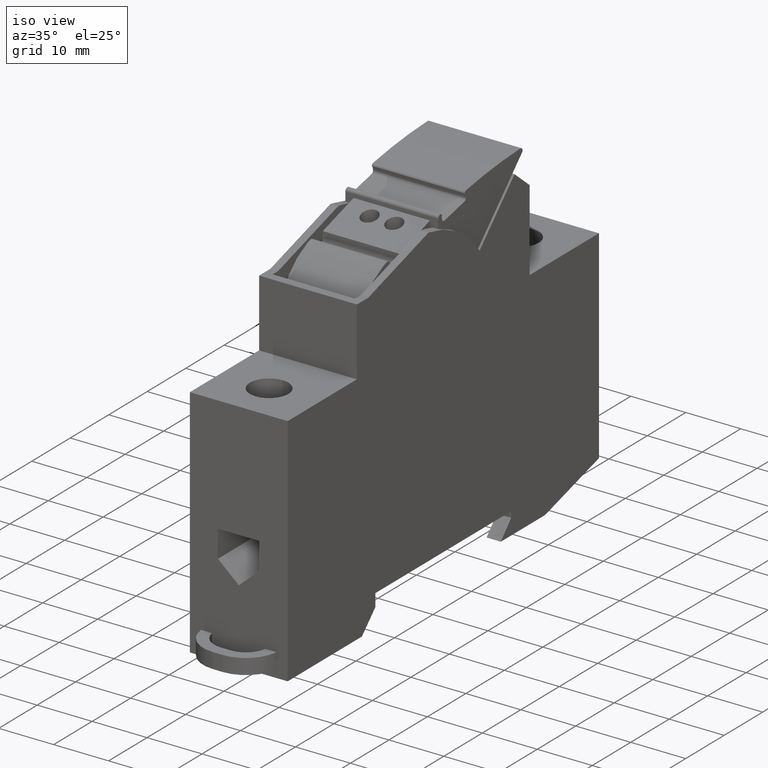
[diagram: clean part render]
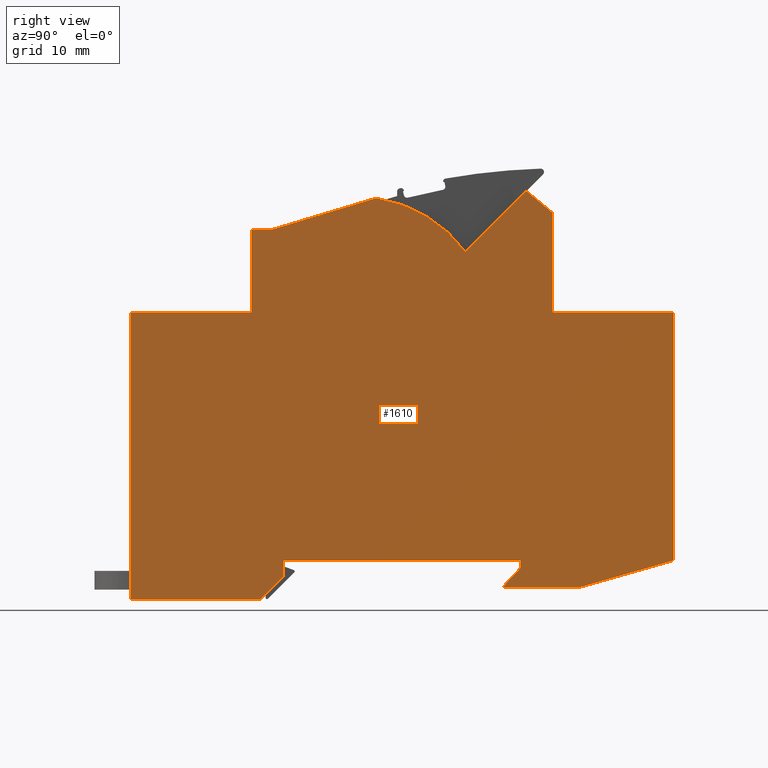
[diagram: tour spotlight — one face highlighted and labeled with its STEP entity id]
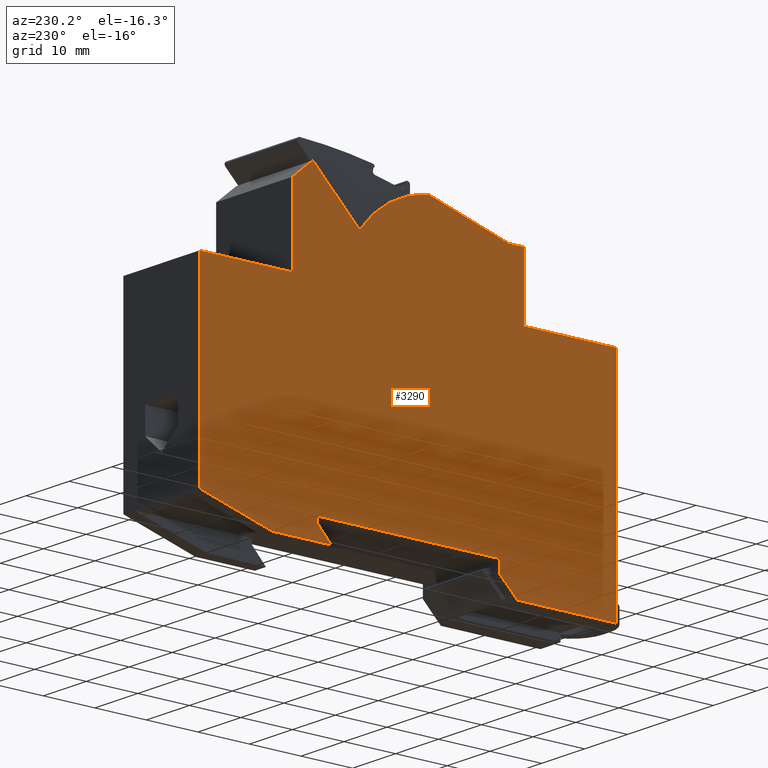
[diagram: tour spotlight — one face highlighted and labeled with its STEP entity id]
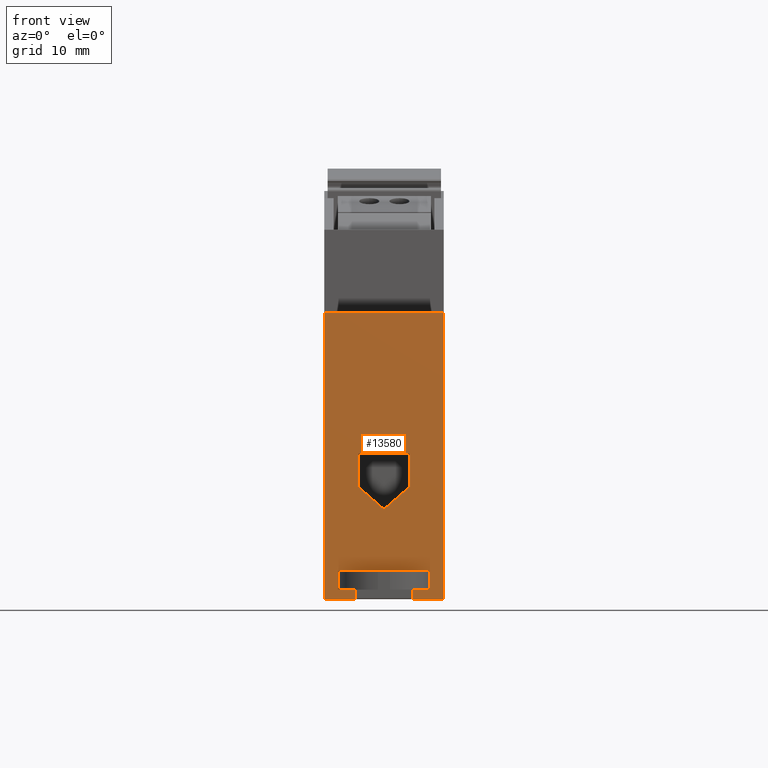
[diagram: tour spotlight — one face highlighted and labeled with its STEP entity id]
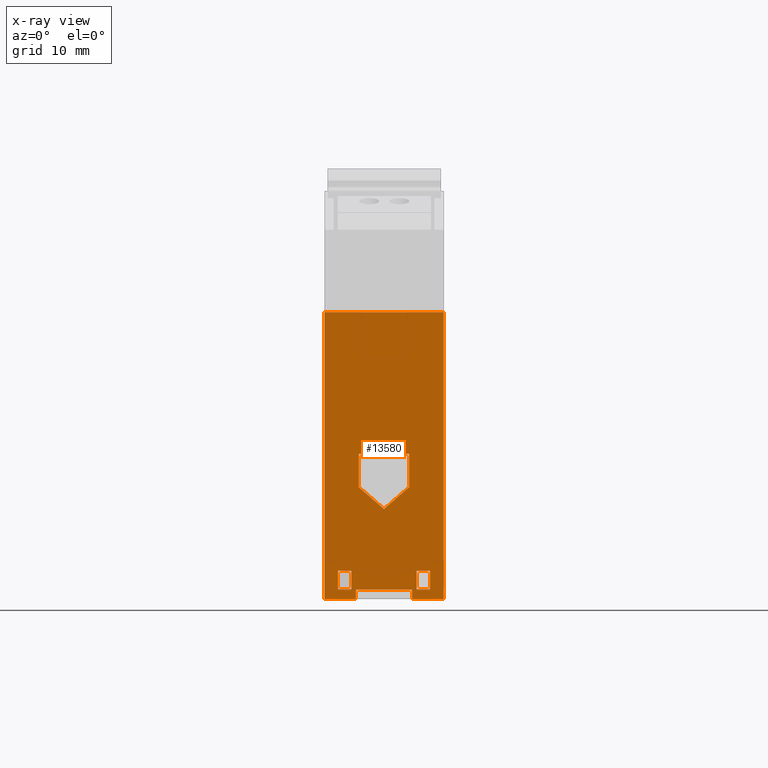
[diagram: x-ray of the same camera — body ghosted, this tour face saturated]
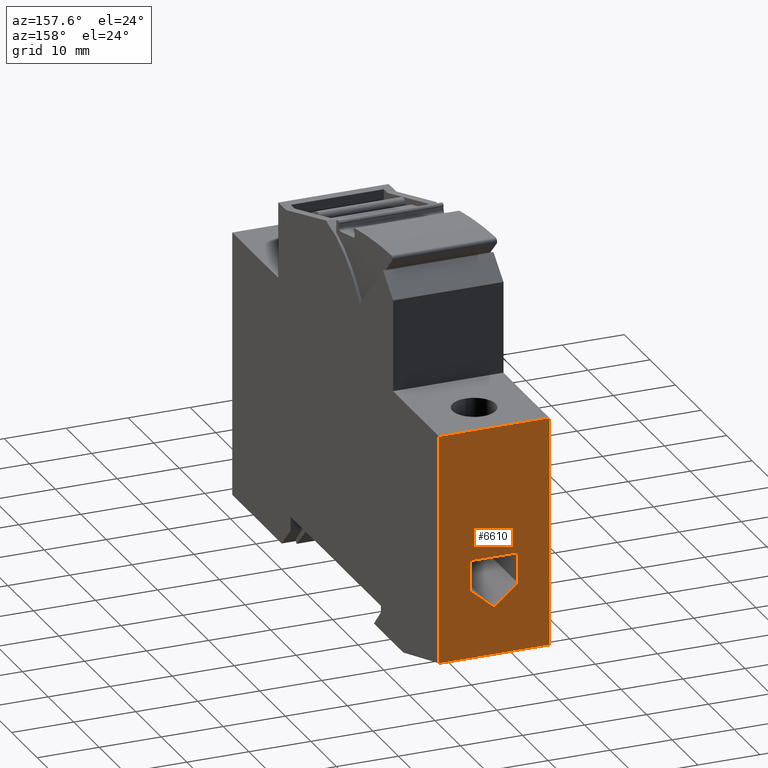
[diagram: tour spotlight — one face highlighted and labeled with its STEP entity id]
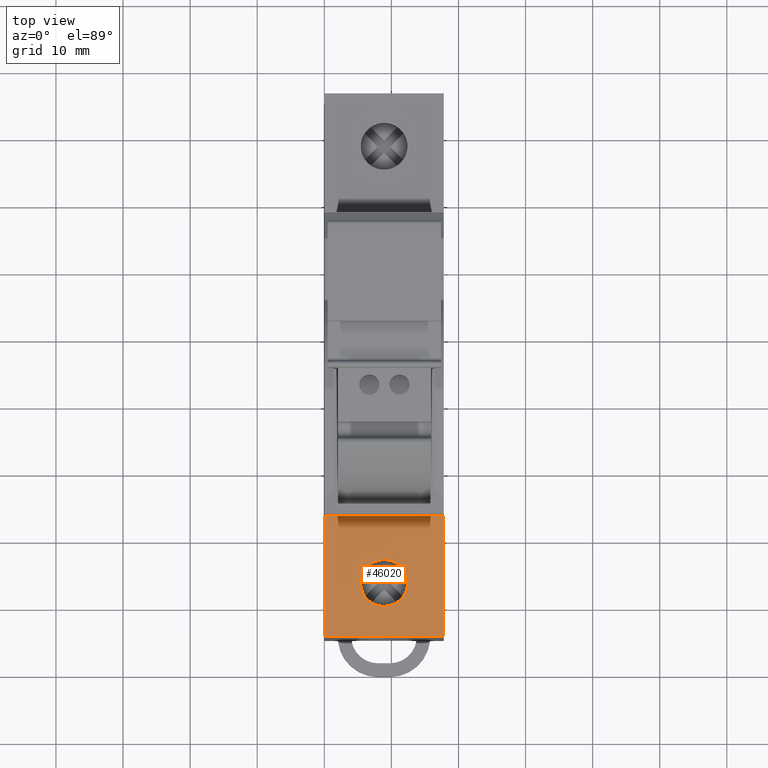
[diagram: tour spotlight — one face highlighted and labeled with its STEP entity id]
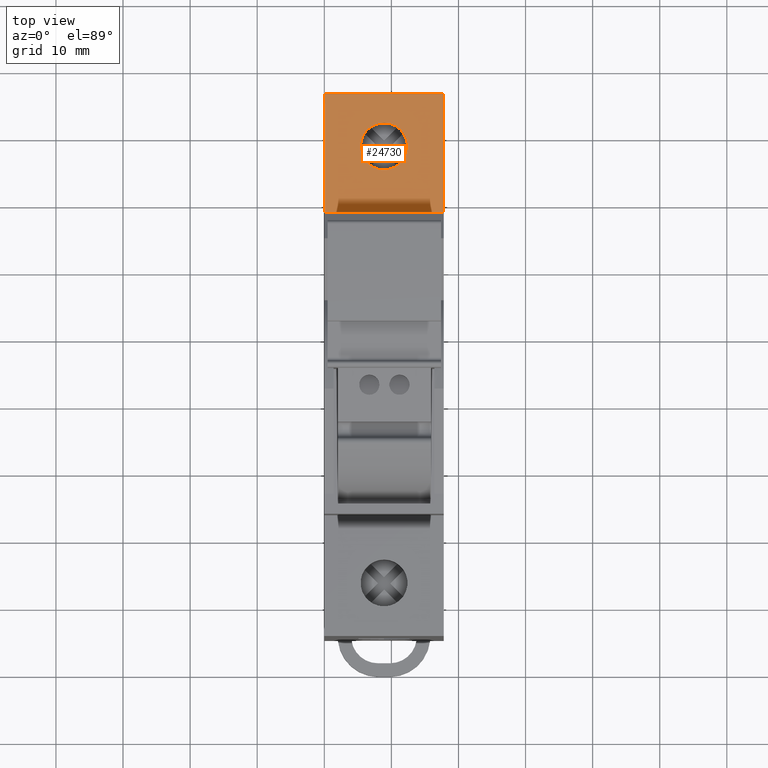
[diagram: tour spotlight — one face highlighted and labeled with its STEP entity id]
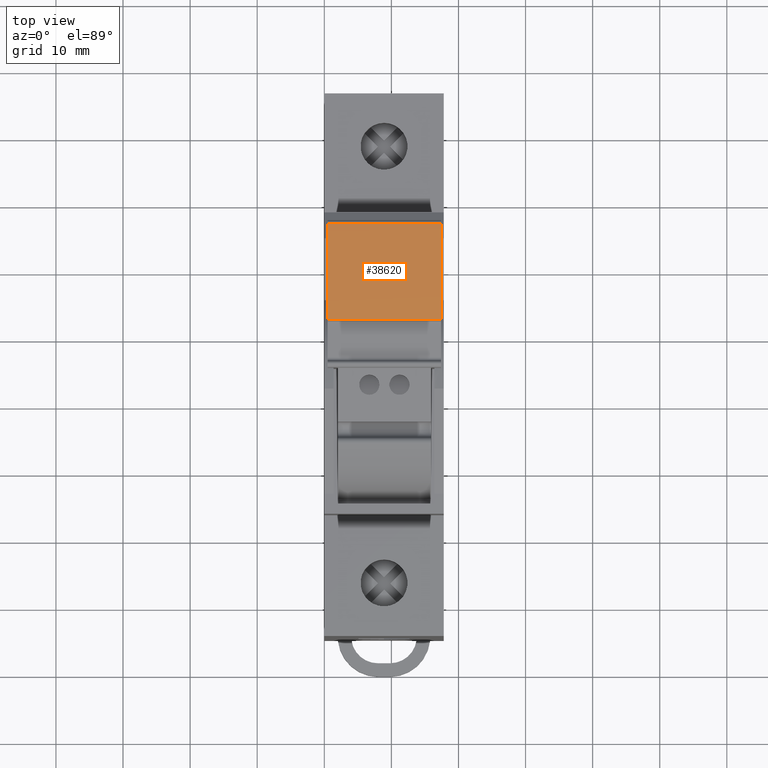
[diagram: tour spotlight — one face highlighted and labeled with its STEP entity id]
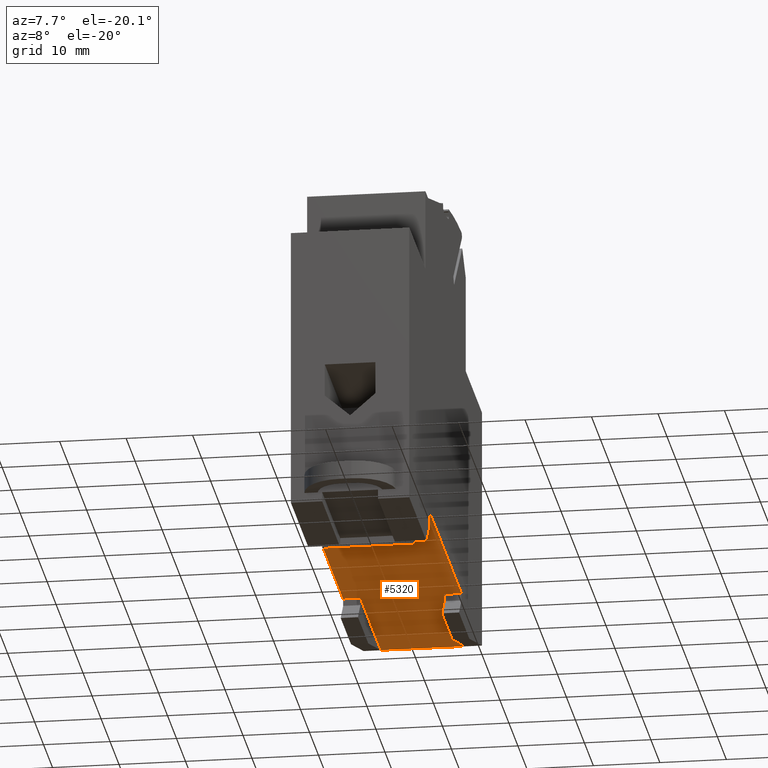
[diagram: tour spotlight — one face highlighted and labeled with its STEP entity id]
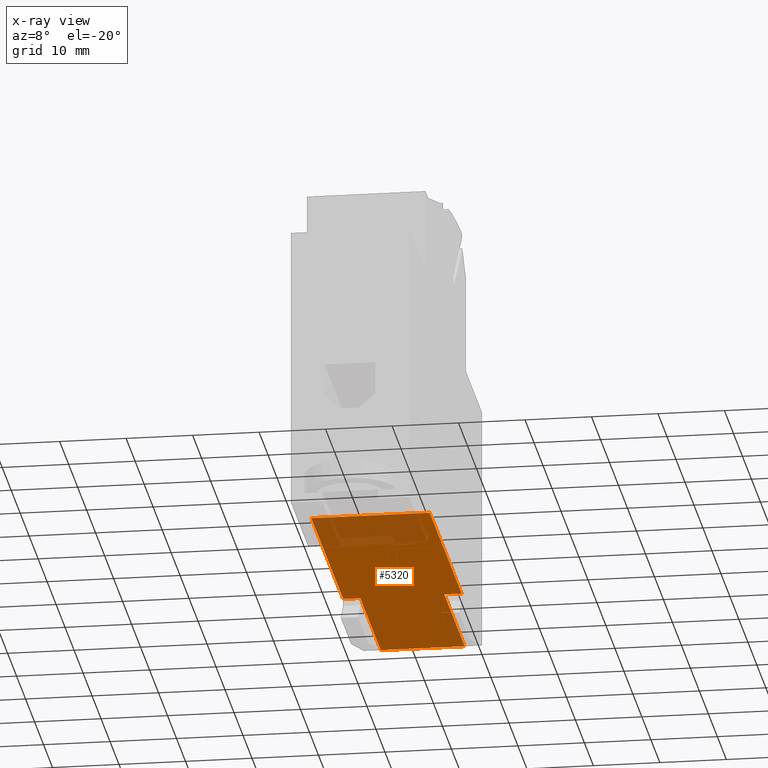
[diagram: x-ray of the same camera — body ghosted, this tour face saturated]
A machine part: a face-by-face anatomy tour. The part has 132 B-rep faces; the first image is the clean iso view, then the 8 largest visible faces are spotlighted one at a time (largest first), each with its STEP entity span.

Face 1 — right view, entity #1610. In plain terms, the highlighted planar face has unit normal (1, 0, 0).
Definition (entity closure, byte-faithful):
#10=CARTESIAN_POINT('',(-47.802305,-73.909094,-17.8));
#20=DIRECTION('',(0.,0.,-1.));
#30=DIRECTION('',(1.,0.,0.));
#40=AXIS2_PLACEMENT_3D('',#10,#20,#30);
#50=PLANE('',#40);
#60=CARTESIAN_POINT('',(-121.461399,0.,-17.8));
#70=DIRECTION('',(-0.707106781186548,0.707106781186548,
-5.55111512312578E-17));
#80=VECTOR('',#70,1.);
#90=LINE('',#60,#80);
#100=CARTESIAN_POINT('',(-65.452305,-56.009094,-17.8));
#110=VERTEX_POINT('',#100);
#120=CARTESIAN_POINT('',(-68.952305,-52.509094,-17.8));
#130=VERTEX_POINT('',#120);
#140=EDGE_CURVE('',#110,#130,#90,.T.);
#150=ORIENTED_EDGE('',*,*,#140,.F.);
#160=CARTESIAN_POINT('',(0.,-52.509094,-17.8));
#170=DIRECTION('',(-1.,0.,0.));
#180=VECTOR('',#170,1.);
#190=LINE('',#160,#180);
#200=CARTESIAN_POINT('',(-88.252305,-52.509094,-17.8));
#210=VERTEX_POINT('',#200);
#220=EDGE_CURVE('',#130,#210,#190,.T.);
#230=ORIENTED_EDGE('',*,*,#220,.F.);
#240=CARTESIAN_POINT('',(-88.252305,-58.309094,-17.8));
#250=DIRECTION('',(0.,1.,0.));
#260=VECTOR('',#250,1.);
#270=LINE('',#240,#260);
#280=CARTESIAN_POINT('',(-88.252305,-95.309094,-17.8));
#290=VERTEX_POINT('',#280);
#300=EDGE_CURVE('',#290,#210,#270,.T.);
#310=ORIENTED_EDGE('',*,*,#300,.T.);
#320=CARTESIAN_POINT('',(-53.320197,-95.309094,-17.8));
#330=DIRECTION('',(1.,0.,0.));
#340=VECTOR('',#330,1.);
#350=LINE('',#320,#340);
#360=CARTESIAN_POINT('',(-70.252305,-95.309094,-17.8));
#370=VERTEX_POINT('',#360);
#380=EDGE_CURVE('',#290,#370,#350,.T.);
#390=ORIENTED_EDGE('',*,*,#380,.F.);
#400=CARTESIAN_POINT('',(-70.252305,-95.309094,-17.8));
#410=DIRECTION('',(0.,-1.,0.));
#420=VECTOR('',#410,1.);
#430=LINE('',#400,#420);
#440=CARTESIAN_POINT('',(-70.252305,-107.609094,-17.8));
#450=VERTEX_POINT('',#440);
#460=EDGE_CURVE('',#370,#450,#430,.T.);
#470=ORIENTED_EDGE('',*,*,#460,.F.);
#480=CARTESIAN_POINT('',(0.,-107.609094,-17.8));
#490=DIRECTION('',(1.,0.,0.));
#500=VECTOR('',#490,1.);
#510=LINE('',#480,#500);
#520=CARTESIAN_POINT('',(-67.2816357191465,-107.609094,-17.8));
#530=VERTEX_POINT('',#520);
#540=EDGE_CURVE('',#450,#530,#510,.T.);
#550=ORIENTED_EDGE('',*,*,#540,.F.);
#560=CARTESIAN_POINT('',(-63.8185218435838,-108.654762683374,-17.8));
#570=DIRECTION('',(0.957312387008861,-0.289055347086673,0.));
#580=VECTOR('',#570,1.);
#590=LINE('',#560,#580);
#600=CARTESIAN_POINT('',(-51.6605382391212,-112.325800704352,-17.8));
#610=VERTEX_POINT('',#600);
#620=EDGE_CURVE('',#530,#610,#590,.T.);
#630=ORIENTED_EDGE('',*,*,#620,.F.);
#640=CARTESIAN_POINT('',(-54.5161453406398,-92.5307127257201,-17.8));
#650=DIRECTION('',(0.,0.,-1.));
#660=DIRECTION('',(1.,0.,0.));
#670=AXIS2_PLACEMENT_3D('',#640,#650,#660);
#680=CIRCLE('',#670,20.);
#690=CARTESIAN_POINT('',(-38.352305,-104.309094,-17.8));
#700=VERTEX_POINT('',#690);
#710=EDGE_CURVE('',#700,#610,#680,.T.);
#720=ORIENTED_EDGE('',*,*,#710,.T.);
#730=CARTESIAN_POINT('',(-142.661399,0.,-17.8));
#740=DIRECTION('',(-0.707106781186548,0.707106781186548,0.));
#750=VECTOR('',#740,1.);
#760=LINE('',#730,#750);
#770=CARTESIAN_POINT('',(-29.2795777272727,-113.381821272727,-17.8));
#780=VERTEX_POINT('',#770);
#790=EDGE_CURVE('',#780,#700,#760,.T.);
#800=ORIENTED_EDGE('',*,*,#790,.T.);
#810=CARTESIAN_POINT('',(0.,-88.9821731666666,-17.8));
#820=DIRECTION('',(-0.768221279597376,-0.64018439966448,0.));
#830=VECTOR('',#820,1.);
#840=LINE('',#810,#830);
#850=CARTESIAN_POINT('',(-25.352305,-110.109094,-17.8));
#860=VERTEX_POINT('',#850);
#870=EDGE_CURVE('',#860,#780,#840,.T.);
#880=ORIENTED_EDGE('',*,*,#870,.T.);
#890=CARTESIAN_POINT('',(-25.352305,-95.309094,-17.8));
#900=DIRECTION('',(0.,-1.,0.));
#910=VECTOR('',#900,1.);
#920=LINE('',#890,#910);
#930=CARTESIAN_POINT('',(-25.352305,-95.309094,-17.8));
#940=VERTEX_POINT('',#930);
#950=EDGE_CURVE('',#940,#860,#920,.T.);
#960=ORIENTED_EDGE('',*,*,#950,.T.);
#970=CARTESIAN_POINT('',(-42.284413,-95.309094,-17.8));
#980=DIRECTION('',(-1.,0.,0.));
#990=VECTOR('',#980,1.);
#1000=LINE('',#970,#990);
#1010=CARTESIAN_POINT('',(-7.352305,-95.309094,-17.8));
#1020=VERTEX_POINT('',#1010);
#1030=EDGE_CURVE('',#1020,#940,#1000,.T.);
#1040=ORIENTED_EDGE('',*,*,#1030,.T.);
#1050=CARTESIAN_POINT('',(-7.352305,-58.309094,-17.8));
#1060=DIRECTION('',(0.,-1.,0.));
#1070=VECTOR('',#1060,1.);
#1080=LINE('',#1050,#1070);
#1090=CARTESIAN_POINT('',(-7.352305,-58.309094,-17.8));
#1100=VERTEX_POINT('',#1090);
#1110=EDGE_CURVE('',#1100,#1020,#1080,.T.);
#1120=ORIENTED_EDGE('',*,*,#1110,.T.);
#1130=CARTESIAN_POINT('',(-21.352305,-54.309094,-17.8));
#1140=DIRECTION('',(0.961523947640823,-0.274721127897378,0.));
#1150=VECTOR('',#1140,1.);
#1160=LINE('',#1130,#1150);
#1170=CARTESIAN_POINT('',(-21.352305,-54.309094,-17.8));
#1180=VERTEX_POINT('',#1170);
#1190=EDGE_CURVE('',#1180,#1100,#1160,.T.);
#1200=ORIENTED_EDGE('',*,*,#1190,.T.);
#1210=CARTESIAN_POINT('',(-32.852305,-54.309094,-17.8));
#1220=DIRECTION('',(1.,0.,0.));
#1230=VECTOR('',#1220,1.);
#1240=LINE('',#1210,#1230);
#1250=CARTESIAN_POINT('',(-32.852305,-54.309094,-17.8));
#1260=VERTEX_POINT('',#1250);
#1270=EDGE_CURVE('',#1260,#1180,#1240,.T.);
#1280=ORIENTED_EDGE('',*,*,#1270,.T.);
#1290=CARTESIAN_POINT('',(-30.152305,-57.209094,-17.8));
#1300=DIRECTION('',(-0.681418527918843,0.73189397443135,0.));
#1310=VECTOR('',#1300,1.);
#1320=LINE('',#1290,#1310);
#1330=CARTESIAN_POINT('',(-30.152305,-57.209094,-17.8));
#1340=VERTEX_POINT('',#1330);
#1350=EDGE_CURVE('',#1340,#1260,#1320,.T.);
#1360=ORIENTED_EDGE('',*,*,#1350,.T.);
#1370=CARTESIAN_POINT('',(-30.152305,-58.309094,-17.8));
#1380=DIRECTION('',(0.,1.,0.));
#1390=VECTOR('',#1380,1.);
#1400=LINE('',#1370,#1390);
#1410=CARTESIAN_POINT('',(-30.152305,-58.309094,-17.8));
#1420=VERTEX_POINT('',#1410);
#1430=EDGE_CURVE('',#1420,#1340,#1400,.T.);
#1440=ORIENTED_EDGE('',*,*,#1430,.T.);
#1450=CARTESIAN_POINT('',(-42.284413,-58.309094,-17.8));
#1460=DIRECTION('',(-1.,0.,0.));
#1470=VECTOR('',#1460,1.);
#1480=LINE('',#1450,#1470);
#1490=CARTESIAN_POINT('',(-65.452305,-58.309094,-17.8));
#1500=VERTEX_POINT('',#1490);
#1510=EDGE_CURVE('',#1420,#1500,#1480,.T.);
#1520=ORIENTED_EDGE('',*,*,#1510,.F.);
#1530=CARTESIAN_POINT('',(-65.452305,0.,-17.8));
#1540=DIRECTION('',(0.,1.,-1.66533453693772E-16));
#1550=VECTOR('',#1540,1.);
#1560=LINE('',#1530,#1550);
#1570=EDGE_CURVE('',#1500,#110,#1560,.T.);
#1580=ORIENTED_EDGE('',*,*,#1570,.F.);
#1590=EDGE_LOOP('',(#1580,#1520,#1440,#1360,#1280,#1200,#1120,#1040,#960
,#880,#800,#720,#630,#550,#470,#390,#310,#230,#150));
#1600=FACE_OUTER_BOUND('',#1590,.T.);
#1610=ADVANCED_FACE('',(#1600),#50,.T.);

Face 2 — auxiliary view, entity #3290. In plain terms, the highlighted planar face has unit normal (-1, 0, 0).
Definition (entity closure, byte-faithful):
#1690=CARTESIAN_POINT('',(-47.802305,-73.909094,0.));
#1700=DIRECTION('',(0.,0.,1.));
#1710=DIRECTION('',(-1.,0.,0.));
#1720=AXIS2_PLACEMENT_3D('',#1690,#1700,#1710);
#1730=PLANE('',#1720);
#1740=CARTESIAN_POINT('',(-42.284413,-58.309094,0.));
#1750=DIRECTION('',(-1.,0.,0.));
#1760=VECTOR('',#1750,1.);
#1770=LINE('',#1740,#1760);
#1780=CARTESIAN_POINT('',(-30.152305,-58.309094,0.));
#1790=VERTEX_POINT('',#1780);
#1800=CARTESIAN_POINT('',(-65.452305,-58.309094,9.08521995642658E-15));
#1810=VERTEX_POINT('',#1800);
#1820=EDGE_CURVE('',#1790,#1810,#1770,.T.);
#1830=ORIENTED_EDGE('',*,*,#1820,.T.);
#1840=CARTESIAN_POINT('',(-30.152305,-58.309094,0.));
#1850=DIRECTION('',(0.,1.,0.));
#1860=VECTOR('',#1850,1.);
#1870=LINE('',#1840,#1860);
#1880=CARTESIAN_POINT('',(-30.152305,-57.209094,0.));
#1890=VERTEX_POINT('',#1880);
#1900=EDGE_CURVE('',#1790,#1890,#1870,.T.);
#1910=ORIENTED_EDGE('',*,*,#1900,.F.);
#1920=CARTESIAN_POINT('',(-30.152305,-57.209094,0.));
#1930=DIRECTION('',(-0.681418527918843,0.73189397443135,0.));
#1940=VECTOR('',#1930,1.);
#1950=LINE('',#1920,#1940);
#1960=CARTESIAN_POINT('',(-32.852305,-54.309094,0.));
#1970=VERTEX_POINT('',#1960);
#1980=EDGE_CURVE('',#1890,#1970,#1950,.T.);
#1990=ORIENTED_EDGE('',*,*,#1980,.F.);
#2000=CARTESIAN_POINT('',(-32.852305,-54.309094,0.));
#2010=DIRECTION('',(1.,0.,0.));
#2020=VECTOR('',#2010,1.);
#2030=LINE('',#2000,#2020);
#2040=CARTESIAN_POINT('',(-21.352305,-54.309094,0.));
#2050=VERTEX_POINT('',#2040);
#2060=EDGE_CURVE('',#1970,#2050,#2030,.T.);
#2070=ORIENTED_EDGE('',*,*,#2060,.F.);
#2080=CARTESIAN_POINT('',(-21.352305,-54.309094,0.));
#2090=DIRECTION('',(0.961523947640823,-0.274721127897378,0.));
#2100=VECTOR('',#2090,1.);
#2110=LINE('',#2080,#2100);
#2120=CARTESIAN_POINT('',(-7.352305,-58.309094,0.));
#2130=VERTEX_POINT('',#2120);
#2140=EDGE_CURVE('',#2050,#2130,#2110,.T.);
#2150=ORIENTED_EDGE('',*,*,#2140,.F.);
#2160=CARTESIAN_POINT('',(-7.352305,-58.309094,0.));
#2170=DIRECTION('',(0.,-1.,0.));
#2180=VECTOR('',#2170,1.);
#2190=LINE('',#2160,#2180);
#2200=CARTESIAN_POINT('',(-7.352305,-95.309094,0.));
#2210=VERTEX_POINT('',#2200);
#2220=EDGE_CURVE('',#2130,#2210,#2190,.T.);
#2230=ORIENTED_EDGE('',*,*,#2220,.F.);
#2240=CARTESIAN_POINT('',(-42.284413,-95.309094,0.));
#2250=DIRECTION('',(-1.,0.,0.));
#2260=VECTOR('',#2250,1.);
#2270=LINE('',#2240,#2260);
#2280=CARTESIAN_POINT('',(-25.352305,-95.309094,0.));
#2290=VERTEX_POINT('',#2280);
#2300=EDGE_CURVE('',#2210,#2290,#2270,.T.);
#2310=ORIENTED_EDGE('',*,*,#2300,.F.);
#2320=CARTESIAN_POINT('',(-25.352305,-95.309094,0.));
#2330=DIRECTION('',(0.,-1.,0.));
#2340=VECTOR('',#2330,1.);
#2350=LINE('',#2320,#2340);
#2360=CARTESIAN_POINT('',(-25.352305,-110.109094,0.));
#2370=VERTEX_POINT('',#2360);
#2380=EDGE_CURVE('',#2290,#2370,#2350,.T.);
#2390=ORIENTED_EDGE('',*,*,#2380,.F.);
#2400=CARTESIAN_POINT('',(0.,-88.9821731666666,0.));
#2410=DIRECTION('',(-0.768221279597376,-0.64018439966448,0.));
#2420=VECTOR('',#2410,1.);
#2430=LINE('',#2400,#2420);
#2440=CARTESIAN_POINT('',(-29.2795777272727,-113.381821272727,0.));
#2450=VERTEX_POINT('',#2440);
#2460=EDGE_CURVE('',#2370,#2450,#2430,.T.);
#2470=ORIENTED_EDGE('',*,*,#2460,.F.);
#2480=CARTESIAN_POINT('',(-142.661399,0.,0.));
#2490=DIRECTION('',(0.707106781186548,-0.707106781186548,0.));
#2500=VECTOR('',#2490,1.);
#2510=LINE('',#2480,#2500);
#2520=CARTESIAN_POINT('',(-38.352305,-104.309094,0.));
#2530=VERTEX_POINT('',#2520);
#2540=EDGE_CURVE('',#2530,#2450,#2510,.T.);
#2550=ORIENTED_EDGE('',*,*,#2540,.T.);
#2560=CARTESIAN_POINT('',(-54.5161453406398,-92.5307127257202,0.));
#2570=DIRECTION('',(0.,0.,-1.));
#2580=DIRECTION('',(1.,0.,0.));
#2590=AXIS2_PLACEMENT_3D('',#2560,#2570,#2580);
#2600=CIRCLE('',#2590,20.);
#2610=CARTESIAN_POINT('',(-51.6605382391212,-112.325800704352,0.));
#2620=VERTEX_POINT('',#2610);
#2630=EDGE_CURVE('',#2530,#2620,#2600,.T.);
#2640=ORIENTED_EDGE('',*,*,#2630,.F.);
#2650=CARTESIAN_POINT('',(1.60442108764698,-128.408869841128,0.));
#2660=DIRECTION('',(0.957312387008861,-0.289055347086673,0.));
#2670=VECTOR('',#2660,1.);
#2680=LINE('',#2650,#2670);
#2690=CARTESIAN_POINT('',(-67.2816357191466,-107.609094,0.));
#2700=VERTEX_POINT('',#2690);
#2710=EDGE_CURVE('',#2700,#2620,#2680,.T.);
#2720=ORIENTED_EDGE('',*,*,#2710,.T.);
#2730=CARTESIAN_POINT('',(0.,-107.609094,0.));
#2740=DIRECTION('',(1.,0.,0.));
#2750=VECTOR('',#2740,1.);
#2760=LINE('',#2730,#2750);
#2770=CARTESIAN_POINT('',(-70.252305,-107.609094,0.));
#2780=VERTEX_POINT('',#2770);
#2790=EDGE_CURVE('',#2780,#2700,#2760,.T.);
#2800=ORIENTED_EDGE('',*,*,#2790,.T.);
#2810=CARTESIAN_POINT('',(-70.252305,-95.309094,0.));
#2820=DIRECTION('',(0.,-1.,0.));
#2830=VECTOR('',#2820,1.);
#2840=LINE('',#2810,#2830);
#2850=CARTESIAN_POINT('',(-70.252305,-95.309094,0.));
#2860=VERTEX_POINT('',#2850);
#2870=EDGE_CURVE('',#2860,#2780,#2840,.T.);
#2880=ORIENTED_EDGE('',*,*,#2870,.T.);
#2890=CARTESIAN_POINT('',(-53.320197,-95.309094,0.));
#2900=DIRECTION('',(1.,0.,0.));
#2910=VECTOR('',#2900,1.);
#2920=LINE('',#2890,#2910);
#2930=CARTESIAN_POINT('',(-88.252305,-95.309094,0.));
#2940=VERTEX_POINT('',#2930);
#2950=EDGE_CURVE('',#2940,#2860,#2920,.T.);
#2960=ORIENTED_EDGE('',*,*,#2950,.T.);
#2970=CARTESIAN_POINT('',(-88.252305,-58.309094,0.));
#2980=DIRECTION('',(0.,1.,0.));
#2990=VECTOR('',#2980,1.);
#3000=LINE('',#2970,#2990);
#3010=CARTESIAN_POINT('',(-88.252305,-52.509094,1.54581919676501E-14));
#3020=VERTEX_POINT('',#3010);
#3030=EDGE_CURVE('',#2940,#3020,#3000,.T.);
#3040=ORIENTED_EDGE('',*,*,#3030,.F.);
#3050=CARTESIAN_POINT('',(0.,-52.509094,-1.31620218772108E-14));
#3060=DIRECTION('',(-1.,0.,3.24299901797023E-16));
#3070=VECTOR('',#3060,1.);
#3080=LINE('',#3050,#3070);
#3090=CARTESIAN_POINT('',(-68.952305,-52.509094,1.28616848114412E-14));
#3100=VERTEX_POINT('',#3090);
#3110=EDGE_CURVE('',#3100,#3020,#3080,.T.);
#3120=ORIENTED_EDGE('',*,*,#3110,.T.);
#3130=CARTESIAN_POINT('',(-121.461399,0.,1.6983891436527E-14));
#3140=DIRECTION('',(-0.707106781186548,0.707106781186548,
5.55111512312578E-17));
#3150=VECTOR('',#3140,1.);
#3160=LINE('',#3130,#3150);
#3170=CARTESIAN_POINT('',(-65.452305,-56.009094,1.25869186311715E-14));
#3180=VERTEX_POINT('',#3170);
#3190=EDGE_CURVE('',#3180,#3100,#3160,.T.);
#3200=ORIENTED_EDGE('',*,*,#3190,.T.);
#3210=CARTESIAN_POINT('',(-65.452305,0.,-1.17985224741319E-15));
#3220=DIRECTION('',(0.,-1.,1.7604581892217E-16));
#3230=VECTOR('',#3220,1.);
#3240=LINE('',#3210,#3230);
#3250=EDGE_CURVE('',#3180,#1810,#3240,.T.);
#3260=ORIENTED_EDGE('',*,*,#3250,.F.);
#3270=EDGE_LOOP('',(#3260,#3200,#3120,#3040,#2960,#2880,#2800,#2720,
#2640,#2550,#2470,#2390,#2310,#2230,#2150,#2070,#1990,#1910,#1830));
#3280=FACE_OUTER_BOUND('',#3270,.T.);
#3290=ADVANCED_FACE('',(#3280),#1730,.T.);

Face 3 — front view, entity #13580. An x-ray twin of the same camera follows (body ghosted, this face saturated) — the face is partly hidden behind the body. In plain terms, the highlighted planar face has unit normal (0, 1, 0).
Definition (entity closure, byte-faithful):
#200=CARTESIAN_POINT('',(-88.252305,-52.509094,-17.8));
#210=VERTEX_POINT('',#200);
#240=CARTESIAN_POINT('',(-88.252305,-58.309094,-17.8));
#250=DIRECTION('',(0.,1.,0.));
#260=VECTOR('',#250,1.);
#270=LINE('',#240,#260);
#280=CARTESIAN_POINT('',(-88.252305,-95.309094,-17.8));
#290=VERTEX_POINT('',#280);
#300=EDGE_CURVE('',#290,#210,#270,.T.);
#2930=CARTESIAN_POINT('',(-88.252305,-95.309094,0.));
#2940=VERTEX_POINT('',#2930);
#2970=CARTESIAN_POINT('',(-88.252305,-58.309094,0.));
#2980=DIRECTION('',(0.,1.,0.));
#2990=VECTOR('',#2980,1.);
#3000=LINE('',#2970,#2990);
#3010=CARTESIAN_POINT('',(-88.252305,-52.509094,1.54581919676501E-14));
#3020=VERTEX_POINT('',#3010);
#3030=EDGE_CURVE('',#2940,#3020,#3000,.T.);
#11950=CARTESIAN_POINT('',(-88.252305,-58.309094,-16.4));
#11960=DIRECTION('',(1.,0.,0.));
#11970=DIRECTION('',(0.,-1.,0.));
#11980=AXIS2_PLACEMENT_3D('',#11950,#11960,#11970);
#11990=PLANE('',#11980);
#12000=CARTESIAN_POINT('',(-88.252305,-53.959094,-14.75));
#12010=DIRECTION('',(0.,0.,1.));
#12020=VECTOR('',#12010,1.);
#12030=LINE('',#12000,#12020);
#12040=CARTESIAN_POINT('',(-88.252305,-53.959094,-13.1));
#12050=VERTEX_POINT('',#12040);
#12060=CARTESIAN_POINT('',(-88.252305,-53.959094,-4.7));
#12070=VERTEX_POINT('',#12060);
#12080=EDGE_CURVE('',#12050,#12070,#12030,.T.);
#12090=ORIENTED_EDGE('',*,*,#12080,.F.);
#12100=CARTESIAN_POINT('',(-88.252305,0.,-4.7));
#12110=DIRECTION('',(0.,-1.,0.));
#12120=VECTOR('',#12110,1.);
#12130=LINE('',#12100,#12120);
#12140=CARTESIAN_POINT('',(-88.252305,-52.509094,-4.7));
#12150=VERTEX_POINT('',#12140);
#12160=EDGE_CURVE('',#12150,#12070,#12130,.T.);
#12170=ORIENTED_EDGE('',*,*,#12160,.T.);
#12180=CARTESIAN_POINT('',(-88.252305,-52.509094,0.));
#12190=DIRECTION('',(0.,-1.7604581892217E-16,-1.));
#12200=VECTOR('',#12190,1.);
#12210=LINE('',#12180,#12200);
#12220=EDGE_CURVE('',#3020,#12150,#12210,.T.);
#12230=ORIENTED_EDGE('',*,*,#12220,.T.);
#12240=ORIENTED_EDGE('',*,*,#3030,.T.);
#12250=CARTESIAN_POINT('',(-88.252305,-95.309094,0.));
#12260=DIRECTION('',(0.,0.,-1.));
#12270=VECTOR('',#12260,1.);
#12280=LINE('',#12250,#12270);
#12290=EDGE_CURVE('',#2940,#290,#12280,.T.);
#12300=ORIENTED_EDGE('',*,*,#12290,.F.);
#12310=ORIENTED_EDGE('',*,*,#300,.F.);
#12320=CARTESIAN_POINT('',(-88.252305,-52.509094,0.));
#12330=DIRECTION('',(0.,-1.66533453693772E-16,-1.));
#12340=VECTOR('',#12330,1.);
#12350=LINE('',#12320,#12340);
#12360=CARTESIAN_POINT('',(-88.252305,-52.509094,-13.1));
#12370=VERTEX_POINT('',#12360);
#12380=EDGE_CURVE('',#12370,#210,#12350,.T.);
#12390=ORIENTED_EDGE('',*,*,#12380,.T.);
#12400=CARTESIAN_POINT('',(-88.252305,0.,-13.1));
#12410=DIRECTION('',(0.,-1.,0.));
#12420=VECTOR('',#12410,1.);
#12430=LINE('',#12400,#12420);
#12440=EDGE_CURVE('',#12370,#12050,#12430,.T.);
#12450=ORIENTED_EDGE('',*,*,#12440,.F.);
#12460=EDGE_LOOP('',(#12450,#12390,#12310,#12300,#12240,#12230,#12170,
#12090));
#12470=FACE_OUTER_BOUND('',#12460,.T.);
#12480=CARTESIAN_POINT('',(-88.252305,-53.959094,-15.7699246226397));
#12490=DIRECTION('',(0.,-1.,0.));
#12500=VECTOR('',#12490,1.);
#12510=LINE('',#12480,#12500);
#12520=CARTESIAN_POINT('',(-88.252305,-53.959094,-15.7699246226397));
#12530=VERTEX_POINT('',#12520);
#12540=CARTESIAN_POINT('',(-88.252305,-56.759094,-15.7699246226397));
#12550=VERTEX_POINT('',#12540);
#12560=EDGE_CURVE('',#12530,#12550,#12510,.T.);
#12570=ORIENTED_EDGE('',*,*,#12560,.F.);
#12580=CARTESIAN_POINT('',(-88.252305,-56.759094,0.));
#12590=DIRECTION('',(-1.7364492310988E-51,0.,1.));
#12600=VECTOR('',#12590,1.);
#12610=LINE('',#12580,#12600);
#12620=CARTESIAN_POINT('',(-88.252305,-56.759094,-13.754743986657));
#12630=VERTEX_POINT('',#12620);
#12640=EDGE_CURVE('',#12550,#12630,#12610,.T.);
#12650=ORIENTED_EDGE('',*,*,#12640,.F.);
#12660=CARTESIAN_POINT('',(-88.252305,-51.9591537187813,-13.754743986657
));
#12670=DIRECTION('',(0.,-1.,0.));
#12680=VECTOR('',#12670,1.);
#12690=LINE('',#12660,#12680);
#12700=CARTESIAN_POINT('',(-88.252305,-53.959094,-13.754743986657));
#12710=VERTEX_POINT('',#12700);
#12720=EDGE_CURVE('',#12710,#12630,#12690,.T.);
#12730=ORIENTED_EDGE('',*,*,#12720,.T.);
#12740=CARTESIAN_POINT('',(-88.252305,-53.959094,0.));
#12750=DIRECTION('',(-1.7364492310988E-51,0.,1.));
#12760=VECTOR('',#12750,1.);
#12770=LINE('',#12740,#12760);
#12780=EDGE_CURVE('',#12530,#12710,#12770,.T.);
#12790=ORIENTED_EDGE('',*,*,#12780,.T.);
#12800=EDGE_LOOP('',(#12790,#12730,#12650,#12570));
#12810=FACE_BOUND('',#12800,.T.);
#12820=CARTESIAN_POINT('',(-88.252305,-58.159094,0.));
#12830=DIRECTION('',(0.,0.658504607868518,0.752576694706878));
#12840=VECTOR('',#12830,1.);
#12850=LINE('',#12820,#12840);
#12860=CARTESIAN_POINT('',(-88.252305,-69.271594,-12.7));
#12870=VERTEX_POINT('',#12860);
#12880=CARTESIAN_POINT('',(-88.252305,-65.946594,-8.90000000000001));
#12890=VERTEX_POINT('',#12880);
#12900=EDGE_CURVE('',#12870,#12890,#12850,.T.);
#12910=ORIENTED_EDGE('',*,*,#12900,.T.);
#12920=CARTESIAN_POINT('',(-88.252305,0.,-12.7));
#12930=DIRECTION('',(0.,1.,0.));
#12940=VECTOR('',#12930,1.);
#12950=LINE('',#12920,#12940);
#12960=CARTESIAN_POINT('',(-88.252305,-74.209094,-12.7));
#12970=VERTEX_POINT('',#12960);
#12980=EDGE_CURVE('',#12970,#12870,#12950,.T.);
#12990=ORIENTED_EDGE('',*,*,#12980,.T.);
#13000=CARTESIAN_POINT('',(-88.252305,-74.209094,0.));
#13010=DIRECTION('',(0.,0.,-1.));
#13020=VECTOR('',#13010,1.);
#13030=LINE('',#13000,#13020);
#13040=CARTESIAN_POINT('',(-88.252305,-74.209094,-5.1));
#13050=VERTEX_POINT('',#13040);
#13060=EDGE_CURVE('',#13050,#12970,#13030,.T.);
#13070=ORIENTED_EDGE('',*,*,#13060,.T.);
#13080=CARTESIAN_POINT('',(-88.252305,0.,-5.1));
#13090=DIRECTION('',(0.,-1.,0.));
#13100=VECTOR('',#13090,1.);
#13110=LINE('',#13080,#13100);
#13120=CARTESIAN_POINT('',(-88.252305,-69.271594,-5.1));
#13130=VERTEX_POINT('',#13120);
#13140=EDGE_CURVE('',#13130,#13050,#13110,.T.);
#13150=ORIENTED_EDGE('',*,*,#13140,.T.);
#13160=CARTESIAN_POINT('',(-88.252305,-73.734094,0.));
#13170=DIRECTION('',(0.,-0.658504607868518,0.752576694706878));
#13180=VECTOR('',#13170,1.);
#13190=LINE('',#13160,#13180);
#13200=EDGE_CURVE('',#12890,#13130,#13190,.T.);
#13210=ORIENTED_EDGE('',*,*,#13200,.T.);
#13220=EDGE_LOOP('',(#13210,#13150,#13070,#12990,#12910));
#13230=FACE_BOUND('',#13220,.T.);
#13240=CARTESIAN_POINT('',(-88.252305,-53.959094,-2.03007537736028));
#13250=DIRECTION('',(0.,-1.,0.));
#13260=VECTOR('',#13250,1.);
#13270=LINE('',#13240,#13260);
#13280=CARTESIAN_POINT('',(-88.252305,-53.959094,-2.03007537736028));
#13290=VERTEX_POINT('',#13280);
#13300=CARTESIAN_POINT('',(-88.252305,-56.759094,-2.03007537736028));
#13310=VERTEX_POINT('',#13300);
#13320=EDGE_CURVE('',#13290,#13310,#13270,.T.);
#13330=ORIENTED_EDGE('',*,*,#13320,.T.);
#13340=CARTESIAN_POINT('',(-88.252305,-53.959094,0.));
#13350=DIRECTION('',(3.24299901797023E-16,0.,1.));
#13360=VECTOR('',#13350,1.);
#13370=LINE('',#13340,#13360);
#13380=CARTESIAN_POINT('',(-88.252305,-53.959094,-4.04525601334296));
#13390=VERTEX_POINT('',#13380);
#13400=EDGE_CURVE('',#13390,#13290,#13370,.T.);
#13410=ORIENTED_EDGE('',*,*,#13400,.T.);
#13420=CARTESIAN_POINT('',(-88.252305,-51.9591537187813,
-4.04525601334296));
#13430=DIRECTION('',(0.,-1.,0.));
#13440=VECTOR('',#13430,1.);
#13450=LINE('',#13420,#13440);
#13460=CARTESIAN_POINT('',(-88.252305,-56.759094,-4.04525601334296));
#13470=VERTEX_POINT('',#13460);
#13480=EDGE_CURVE('',#13390,#13470,#13450,.T.);
#13490=ORIENTED_EDGE('',*,*,#13480,.F.);
#13500=CARTESIAN_POINT('',(-88.252305,-56.759094,0.));
#13510=DIRECTION('',(3.24299901797023E-16,0.,1.));
#13520=VECTOR('',#13510,1.);
#13530=LINE('',#13500,#13520);
#13540=EDGE_CURVE('',#13470,#13310,#13530,.T.);
#13550=ORIENTED_EDGE('',*,*,#13540,.F.);
#13560=EDGE_LOOP('',(#13550,#13490,#13410,#13330));
#13570=FACE_BOUND('',#13560,.T.);
#13580=ADVANCED_FACE('',(#12470,#12810,#13230,#13570),#11990,.F.);

Face 4 — auxiliary view, entity #6610. In plain terms, the highlighted planar face has unit normal (0, -1, 0).
Definition (entity closure, byte-faithful):
#1010=CARTESIAN_POINT('',(-7.352305,-95.309094,-17.8));
#1020=VERTEX_POINT('',#1010);
#1050=CARTESIAN_POINT('',(-7.352305,-58.309094,-17.8));
#1060=DIRECTION('',(0.,-1.,0.));
#1070=VECTOR('',#1060,1.);
#1080=LINE('',#1050,#1070);
#1090=CARTESIAN_POINT('',(-7.352305,-58.309094,-17.8));
#1100=VERTEX_POINT('',#1090);
#1110=EDGE_CURVE('',#1100,#1020,#1080,.T.);
#2120=CARTESIAN_POINT('',(-7.352305,-58.309094,0.));
#2130=VERTEX_POINT('',#2120);
#2160=CARTESIAN_POINT('',(-7.352305,-58.309094,0.));
#2170=DIRECTION('',(0.,-1.,0.));
#2180=VECTOR('',#2170,1.);
#2190=LINE('',#2160,#2180);
#2200=CARTESIAN_POINT('',(-7.352305,-95.309094,0.));
#2210=VERTEX_POINT('',#2200);
#2220=EDGE_CURVE('',#2130,#2210,#2190,.T.);
#3480=CARTESIAN_POINT('',(-7.352305,-58.309094,-2.6));
#3490=VERTEX_POINT('',#3480);
#4740=CARTESIAN_POINT('',(-7.352305,-58.309094,0.));
#4750=DIRECTION('',(0.,0.,1.));
#4760=VECTOR('',#4750,1.);
#4770=LINE('',#4740,#4760);
#4780=EDGE_CURVE('',#3490,#2130,#4770,.T.);
#5200=CARTESIAN_POINT('',(-7.352305,-58.309094,-15.2));
#5210=VERTEX_POINT('',#5200);
#5240=CARTESIAN_POINT('',(-7.352305,-58.309094,-1.4));
#5250=DIRECTION('',(0.,0.,-1.));
#5260=VECTOR('',#5250,1.);
#5270=LINE('',#5240,#5260);
#5280=EDGE_CURVE('',#3490,#5210,#5270,.T.);
#5960=CARTESIAN_POINT('',(-7.352305,-58.309094,-1.4));
#5970=DIRECTION('',(-1.,0.,0.));
#5980=DIRECTION('',(0.,-1.,0.));
#5990=AXIS2_PLACEMENT_3D('',#5960,#5970,#5980);
#6000=PLANE('',#5990);
#6010=CARTESIAN_POINT('',(-7.352305,0.,-12.7));
#6020=DIRECTION('',(0.,-1.,0.));
#6030=VECTOR('',#6020,1.);
#6040=LINE('',#6010,#6030);
#6050=CARTESIAN_POINT('',(-7.352305,-69.271594,-12.7));
#6060=VERTEX_POINT('',#6050);
#6070=CARTESIAN_POINT('',(-7.352305,-74.209094,-12.7));
#6080=VERTEX_POINT('',#6070);
#6090=EDGE_CURVE('',#6060,#6080,#6040,.T.);
#6100=ORIENTED_EDGE('',*,*,#6090,.T.);
#6110=CARTESIAN_POINT('',(-7.352305,-58.159094,0.));
#6120=DIRECTION('',(0.,-0.658504607868518,-0.752576694706878));
#6130=VECTOR('',#6120,1.);
#6140=LINE('',#6110,#6130);
#6150=CARTESIAN_POINT('',(-7.352305,-65.946594,-8.90000000000002));
#6160=VERTEX_POINT('',#6150);
#6170=EDGE_CURVE('',#6160,#6060,#6140,.T.);
#6180=ORIENTED_EDGE('',*,*,#6170,.T.);
#6190=CARTESIAN_POINT('',(-7.352305,-73.734094,0.));
#6200=DIRECTION('',(0.,0.658504607868518,-0.752576694706878));
#6210=VECTOR('',#6200,1.);
#6220=LINE('',#6190,#6210);
#6230=CARTESIAN_POINT('',(-7.352305,-69.271594,-5.1));
#6240=VERTEX_POINT('',#6230);
#6250=EDGE_CURVE('',#6240,#6160,#6220,.T.);
#6260=ORIENTED_EDGE('',*,*,#6250,.T.);
#6270=CARTESIAN_POINT('',(-7.352305,0.,-5.1));
#6280=DIRECTION('',(0.,1.,0.));
#6290=VECTOR('',#6280,1.);
#6300=LINE('',#6270,#6290);
#6310=CARTESIAN_POINT('',(-7.352305,-74.209094,-5.1));
#6320=VERTEX_POINT('',#6310);
#6330=EDGE_CURVE('',#6320,#6240,#6300,.T.);
#6340=ORIENTED_EDGE('',*,*,#6330,.T.);
#6350=CARTESIAN_POINT('',(-7.352305,-74.209094,0.));
#6360=DIRECTION('',(0.,0.,1.));
#6370=VECTOR('',#6360,1.);
#6380=LINE('',#6350,#6370);
#6390=EDGE_CURVE('',#6080,#6320,#6380,.T.);
#6400=ORIENTED_EDGE('',*,*,#6390,.T.);
#6410=EDGE_LOOP('',(#6400,#6340,#6260,#6180,#6100));
#6420=FACE_BOUND('',#6410,.T.);
#6430=ORIENTED_EDGE('',*,*,#2220,.T.);
#6440=ORIENTED_EDGE('',*,*,#4780,.T.);
#6450=ORIENTED_EDGE('',*,*,#5280,.F.);
#6460=CARTESIAN_POINT('',(-7.352305,-58.309094,-17.8));
#6470=DIRECTION('',(0.,0.,-1.));
#6480=VECTOR('',#6470,1.);
#6490=LINE('',#6460,#6480);
#6500=EDGE_CURVE('',#5210,#1100,#6490,.T.);
#6510=ORIENTED_EDGE('',*,*,#6500,.F.);
#6520=ORIENTED_EDGE('',*,*,#1110,.F.);
#6530=CARTESIAN_POINT('',(-7.352305,-95.309094,-17.8));
#6540=DIRECTION('',(0.,0.,1.));
#6550=VECTOR('',#6540,1.);
#6560=LINE('',#6530,#6550);
#6570=EDGE_CURVE('',#1020,#2210,#6560,.T.);
#6580=ORIENTED_EDGE('',*,*,#6570,.F.);
#6590=EDGE_LOOP('',(#6580,#6520,#6510,#6450,#6440,#6430));
#6600=FACE_OUTER_BOUND('',#6590,.T.);
#6610=ADVANCED_FACE('',(#6420,#6600),#6000,.F.);

Face 5 — top view, entity #46020. In plain terms, the highlighted planar face has unit normal (0, 0, 1).
Definition (entity closure, byte-faithful):
#280=CARTESIAN_POINT('',(-88.252305,-95.309094,-17.8));
#290=VERTEX_POINT('',#280);
#320=CARTESIAN_POINT('',(-53.320197,-95.309094,-17.8));
#330=DIRECTION('',(1.,0.,0.));
#340=VECTOR('',#330,1.);
#350=LINE('',#320,#340);
#360=CARTESIAN_POINT('',(-70.252305,-95.309094,-17.8));
#370=VERTEX_POINT('',#360);
#380=EDGE_CURVE('',#290,#370,#350,.T.);
#2850=CARTESIAN_POINT('',(-70.252305,-95.309094,0.));
#2860=VERTEX_POINT('',#2850);
#2890=CARTESIAN_POINT('',(-53.320197,-95.309094,0.));
#2900=DIRECTION('',(1.,0.,0.));
#2910=VECTOR('',#2900,1.);
#2920=LINE('',#2890,#2910);
#2930=CARTESIAN_POINT('',(-88.252305,-95.309094,0.));
#2940=VERTEX_POINT('',#2930);
#2950=EDGE_CURVE('',#2940,#2860,#2920,.T.);
#12250=CARTESIAN_POINT('',(-88.252305,-95.309094,0.));
#12260=DIRECTION('',(0.,0.,-1.));
#12270=VECTOR('',#12260,1.);
#12280=LINE('',#12250,#12270);
#12290=EDGE_CURVE('',#2940,#290,#12280,.T.);
#45600=CARTESIAN_POINT('',(-70.252305,-95.309094,-17.8));
#45610=DIRECTION('',(0.,0.,-1.));
#45620=VECTOR('',#45610,1.);
#45630=LINE('',#45600,#45620);
#45640=EDGE_CURVE('',#2860,#370,#45630,.T.);
#45760=CARTESIAN_POINT('',(-88.252305,-95.309094,-4.));
#45770=DIRECTION('',(0.,-1.,0.));
#45780=DIRECTION('',(1.,0.,0.));
#45790=AXIS2_PLACEMENT_3D('',#45760,#45770,#45780);
#45800=PLANE('',#45790);
#45810=CARTESIAN_POINT('',(-80.352305,-95.309094,-8.9));
#45820=DIRECTION('',(0.,-1.,0.));
#45830=DIRECTION('',(1.,0.,0.));
#45840=AXIS2_PLACEMENT_3D('',#45810,#45820,#45830);
#45850=CIRCLE('',#45840,3.5);
#45860=CARTESIAN_POINT('',(-76.852305,-95.309094,-8.9));
#45870=VERTEX_POINT('',#45860);
#45880=CARTESIAN_POINT('',(-83.852305,-95.309094,-8.9));
#45890=VERTEX_POINT('',#45880);
#45900=EDGE_CURVE('',#45870,#45890,#45850,.T.);
#45910=ORIENTED_EDGE('',*,*,#45900,.F.);
#45920=EDGE_CURVE('',#45890,#45870,#45850,.T.);
#45930=ORIENTED_EDGE('',*,*,#45920,.F.);
#45940=EDGE_LOOP('',(#45930,#45910));
#45950=FACE_BOUND('',#45940,.T.);
#45960=ORIENTED_EDGE('',*,*,#380,.T.);
#45970=ORIENTED_EDGE('',*,*,#12290,.T.);
#45980=ORIENTED_EDGE('',*,*,#2950,.F.);
#45990=ORIENTED_EDGE('',*,*,#45640,.F.);
#46000=EDGE_LOOP('',(#45990,#45980,#45970,#45960));
#46010=FACE_OUTER_BOUND('',#46000,.T.);
#46020=ADVANCED_FACE('',(#45950,#46010),#45800,.T.);

Face 6 — top view, entity #24730. In plain terms, the highlighted planar face has unit normal (0, -0, 1).
Definition (entity closure, byte-faithful):
#930=CARTESIAN_POINT('',(-25.352305,-95.309094,-17.8));
#940=VERTEX_POINT('',#930);
#970=CARTESIAN_POINT('',(-42.284413,-95.309094,-17.8));
#980=DIRECTION('',(-1.,0.,0.));
#990=VECTOR('',#980,1.);
#1000=LINE('',#970,#990);
#1010=CARTESIAN_POINT('',(-7.352305,-95.309094,-17.8));
#1020=VERTEX_POINT('',#1010);
#1030=EDGE_CURVE('',#1020,#940,#1000,.T.);
#2200=CARTESIAN_POINT('',(-7.352305,-95.309094,0.));
#2210=VERTEX_POINT('',#2200);
#2240=CARTESIAN_POINT('',(-42.284413,-95.309094,0.));
#2250=DIRECTION('',(-1.,0.,0.));
#2260=VECTOR('',#2250,1.);
#2270=LINE('',#2240,#2260);
#2280=CARTESIAN_POINT('',(-25.352305,-95.309094,0.));
#2290=VERTEX_POINT('',#2280);
#2300=EDGE_CURVE('',#2210,#2290,#2270,.T.);
#6530=CARTESIAN_POINT('',(-7.352305,-95.309094,-17.8));
#6540=DIRECTION('',(0.,0.,1.));
#6550=VECTOR('',#6540,1.);
#6560=LINE('',#6530,#6550);
#6570=EDGE_CURVE('',#1020,#2210,#6560,.T.);
#24420=CARTESIAN_POINT('',(-10.152305,-95.309094,-16.4));
#24430=DIRECTION('',(-0.,-1.,-0.));
#24440=DIRECTION('',(-1.,0.,0.));
#24450=AXIS2_PLACEMENT_3D('',#24420,#24430,#24440);
#24460=PLANE('',#24450);
#24470=CARTESIAN_POINT('',(-15.252305,-95.309094,-8.9));
#24480=DIRECTION('',(0.,1.,0.));
#24490=DIRECTION('',(-1.,0.,0.));
#24500=AXIS2_PLACEMENT_3D('',#24470,#24480,#24490);
#24510=CIRCLE('',#24500,3.5);
#24520=CARTESIAN_POINT('',(-11.752305,-95.309094,-8.9));
#24530=VERTEX_POINT('',#24520);
#24540=CARTESIAN_POINT('',(-18.752305,-95.309094,-8.9));
#24550=VERTEX_POINT('',#24540);
#24560=EDGE_CURVE('',#24530,#24550,#24510,.T.);
#24570=ORIENTED_EDGE('',*,*,#24560,.T.);
#24580=EDGE_CURVE('',#24550,#24530,#24510,.T.);
#24590=ORIENTED_EDGE('',*,*,#24580,.T.);
#24600=EDGE_LOOP('',(#24590,#24570));
#24610=FACE_BOUND('',#24600,.T.);
#24620=ORIENTED_EDGE('',*,*,#1030,.F.);
#24630=CARTESIAN_POINT('',(-25.352305,-95.309094,-17.8));
#24640=DIRECTION('',(0.,0.,-1.));
#24650=VECTOR('',#24640,1.);
#24660=LINE('',#24630,#24650);
#24670=EDGE_CURVE('',#2290,#940,#24660,.T.);
#24680=ORIENTED_EDGE('',*,*,#24670,.T.);
#24690=ORIENTED_EDGE('',*,*,#2300,.T.);
#24700=ORIENTED_EDGE('',*,*,#6570,.T.);
#24710=EDGE_LOOP('',(#24700,#24690,#24680,#24620));
#24720=FACE_OUTER_BOUND('',#24710,.T.);
#24730=ADVANCED_FACE('',(#24610,#24720),#24460,.T.);

Face 7 — top view, entity #38620. In plain terms, the highlighted cylindrical surface (partial cylindrical patch) has radius 100 mm, axis along (1, 0, 0).
Definition (entity closure, byte-faithful):
#32200=CARTESIAN_POINT('',(-27.1651886451824,-116.719387426093,
-0.499999999999996));
#32210=VERTEX_POINT('',#32200);
#32240=CARTESIAN_POINT('',(-23.8977351089165,-16.7727829445584,
-0.499999999999996));
#32250=DIRECTION('',(0.,0.,-1.));
#32260=DIRECTION('',(1.,0.,0.));
#32270=AXIS2_PLACEMENT_3D('',#32240,#32250,#32260);
#32280=CIRCLE('',#32270,100.);
#32290=CARTESIAN_POINT('',(-41.3966578846399,-115.229817744969,
-0.499999999999996));
#32300=VERTEX_POINT('',#32290);
#32310=EDGE_CURVE('',#32210,#32300,#32280,.T.);
#37890=CARTESIAN_POINT('',(-41.3966578846399,-115.229817744969,-17.4));
#37900=VERTEX_POINT('',#37890);
#37930=CARTESIAN_POINT('',(-23.8977351089165,-16.7727829445584,-17.4));
#37940=DIRECTION('',(0.,0.,-1.));
#37950=DIRECTION('',(1.,0.,0.));
#37960=AXIS2_PLACEMENT_3D('',#37930,#37940,#37950);
#37970=CIRCLE('',#37960,100.);
#37980=CARTESIAN_POINT('',(-27.1651886451824,-116.719387426093,-17.4));
#37990=VERTEX_POINT('',#37980);
#38000=EDGE_CURVE('',#37990,#37900,#37970,.T.);
#38270=CARTESIAN_POINT('',(-27.1651886451824,-116.719387426093,-17.4));
#38280=DIRECTION('',(0.,0.,1.));
#38290=VECTOR('',#38280,1.);
#38300=LINE('',#38270,#38290);
#38310=EDGE_CURVE('',#37990,#32210,#38300,.T.);
#38460=CARTESIAN_POINT('',(-23.8977351089165,-16.7727829445584,-17.4));
#38470=DIRECTION('',(0.,0.,-1.));
#38480=DIRECTION('',(1.,0.,0.));
#38490=AXIS2_PLACEMENT_3D('',#38460,#38470,#38480);
#38500=CYLINDRICAL_SURFACE('',#38490,100.);
#38510=ORIENTED_EDGE('',*,*,#38310,.T.);
#38520=ORIENTED_EDGE('',*,*,#38000,.F.);
#38530=CARTESIAN_POINT('',(-41.3966578846395,-115.229817744969,-17.4));
#38540=DIRECTION('',(0.,0.,-1.));
#38550=VECTOR('',#38540,1.);
#38560=LINE('',#38530,#38550);
#38570=EDGE_CURVE('',#32300,#37900,#38560,.T.);
#38580=ORIENTED_EDGE('',*,*,#38570,.T.);
#38590=ORIENTED_EDGE('',*,*,#32310,.T.);
#38600=EDGE_LOOP('',(#38590,#38580,#38520,#38510));
#38610=FACE_OUTER_BOUND('',#38600,.T.);
#38620=ADVANCED_FACE('',(#38610),#38500,.T.);

Face 8 — auxiliary view, entity #5320. An x-ray twin of the same camera follows (body ghosted, this face saturated) — the face is partly hidden behind the body. In plain terms, the highlighted planar face has unit normal (0, 0, -1).
Definition (entity closure, byte-faithful):
#1410=CARTESIAN_POINT('',(-30.152305,-58.309094,-17.8));
#1420=VERTEX_POINT('',#1410);
#1450=CARTESIAN_POINT('',(-42.284413,-58.309094,-17.8));
#1460=DIRECTION('',(-1.,0.,0.));
#1470=VECTOR('',#1460,1.);
#1480=LINE('',#1450,#1470);
#1490=CARTESIAN_POINT('',(-65.452305,-58.309094,-17.8));
#1500=VERTEX_POINT('',#1490);
#1510=EDGE_CURVE('',#1420,#1500,#1480,.T.);
#1740=CARTESIAN_POINT('',(-42.284413,-58.309094,0.));
#1750=DIRECTION('',(-1.,0.,0.));
#1760=VECTOR('',#1750,1.);
#1770=LINE('',#1740,#1760);
#1780=CARTESIAN_POINT('',(-30.152305,-58.309094,0.));
#1790=VERTEX_POINT('',#1780);
#1800=CARTESIAN_POINT('',(-65.452305,-58.309094,9.08521995642658E-15));
#1810=VERTEX_POINT('',#1800);
#1820=EDGE_CURVE('',#1790,#1810,#1770,.T.);
#3480=CARTESIAN_POINT('',(-7.352305,-58.309094,-2.6));
#3490=VERTEX_POINT('',#3480);
#3720=CARTESIAN_POINT('',(-30.152305,-58.309094,-2.6));
#3730=VERTEX_POINT('',#3720);
#3760=CARTESIAN_POINT('',(0.,-58.309094,-2.6));
#3770=DIRECTION('',(1.,0.,0.));
#3780=VECTOR('',#3770,1.);
#3790=LINE('',#3760,#3780);
#3800=EDGE_CURVE('',#3730,#3490,#3790,.T.);
#4040=CARTESIAN_POINT('',(-30.152305,-58.309094,0.));
#4050=DIRECTION('',(0.,0.,1.));
#4060=VECTOR('',#4050,1.);
#4070=LINE('',#4040,#4060);
#4080=EDGE_CURVE('',#3730,#1790,#4070,.T.);
#4930=CARTESIAN_POINT('',(-26.852305,-58.309094,-3.9));
#4940=DIRECTION('',(0.,1.,-0.));
#4950=DIRECTION('',(-1.,0.,0.));
#4960=AXIS2_PLACEMENT_3D('',#4930,#4940,#4950);
#4970=PLANE('',#4960);
#4980=ORIENTED_EDGE('',*,*,#3800,.T.);
#4990=ORIENTED_EDGE('',*,*,#4080,.F.);
#5000=ORIENTED_EDGE('',*,*,#1820,.F.);
#5010=CARTESIAN_POINT('',(-65.452305,-58.309094,0.));
#5020=DIRECTION('',(0.,0.,-1.));
#5030=VECTOR('',#5020,1.);
#5040=LINE('',#5010,#5030);
#5050=EDGE_CURVE('',#1810,#1500,#5040,.T.);
#5060=ORIENTED_EDGE('',*,*,#5050,.F.);
#5070=ORIENTED_EDGE('',*,*,#1510,.T.);
#5080=CARTESIAN_POINT('',(-30.152305,-58.309094,-17.8));
#5090=DIRECTION('',(0.,0.,-1.));
#5100=VECTOR('',#5090,1.);
#5110=LINE('',#5080,#5100);
#5120=CARTESIAN_POINT('',(-30.152305,-58.309094,-15.2));
#5130=VERTEX_POINT('',#5120);
#5140=EDGE_CURVE('',#5130,#1420,#5110,.T.);
#5150=ORIENTED_EDGE('',*,*,#5140,.T.);
#5160=CARTESIAN_POINT('',(0.,-58.309094,-15.2));
#5170=DIRECTION('',(1.,0.,0.));
#5180=VECTOR('',#5170,1.);
#5190=LINE('',#5160,#5180);
#5200=CARTESIAN_POINT('',(-7.352305,-58.309094,-15.2));
#5210=VERTEX_POINT('',#5200);
#5220=EDGE_CURVE('',#5130,#5210,#5190,.T.);
#5230=ORIENTED_EDGE('',*,*,#5220,.F.);
#5240=CARTESIAN_POINT('',(-7.352305,-58.309094,-1.4));
#5250=DIRECTION('',(0.,0.,-1.));
#5260=VECTOR('',#5250,1.);
#5270=LINE('',#5240,#5260);
#5280=EDGE_CURVE('',#3490,#5210,#5270,.T.);
#5290=ORIENTED_EDGE('',*,*,#5280,.T.);
#5300=EDGE_LOOP('',(#5290,#5230,#5150,#5070,#5060,#5000,#4990,#4980));
#5310=FACE_OUTER_BOUND('',#5300,.T.);
#5320=ADVANCED_FACE('',(#5310),#4970,.T.);